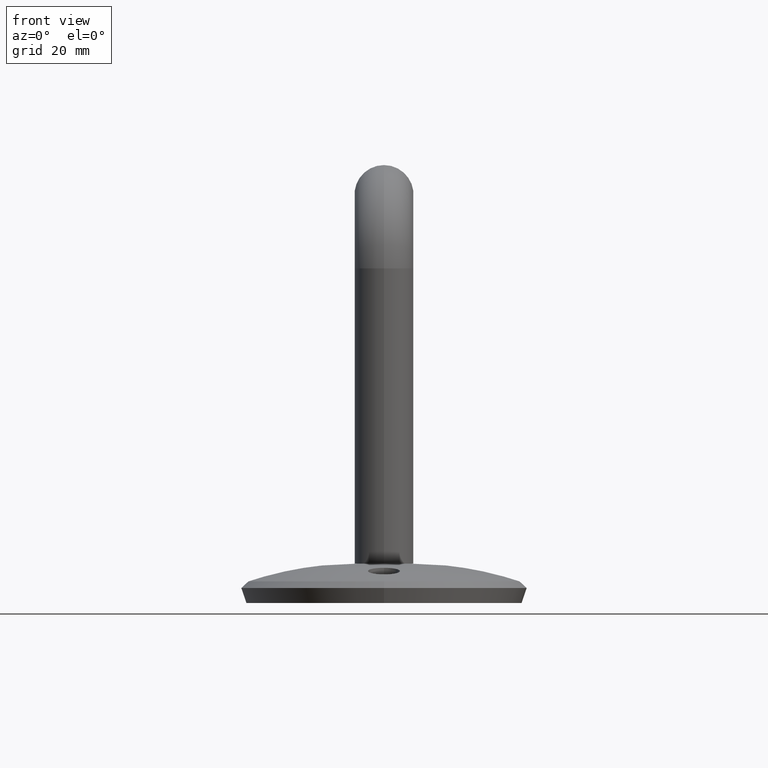
[diagram: clean part render]
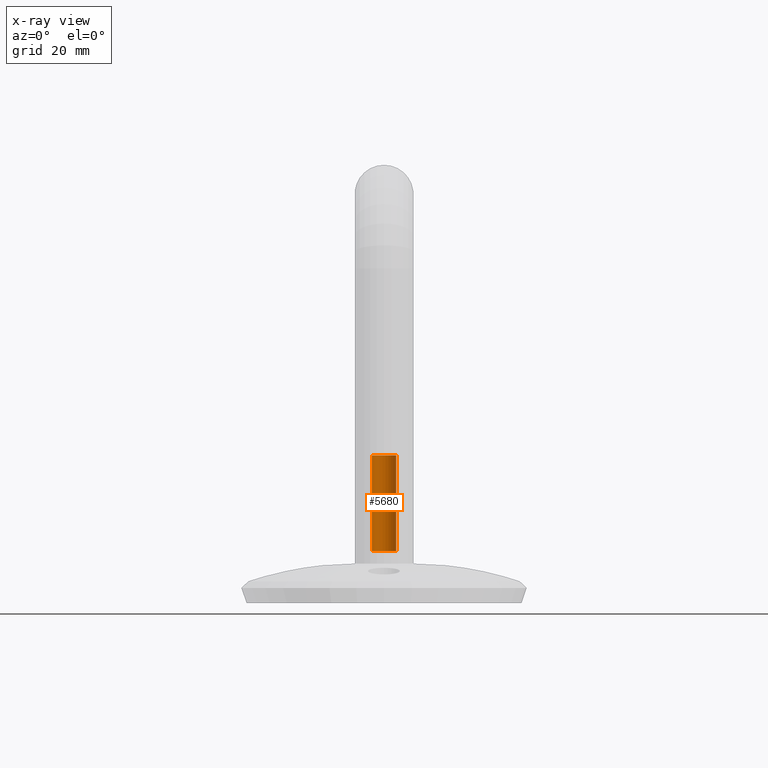
[diagram: x-ray — body ghosted, one internal face saturated and labeled with its STEP entity id]
A machine part, front view, then the same camera in x-ray: the body is ghosted and one INTERNAL B-rep face — a face not visible from any outside direction — is saturated and labeled: STEP entity #5680.
In plain terms, the highlighted cylindrical surface (edge-blend (fillet) strip) has radius 2.5 mm, axis along (-0, -0, -1).
Its self-contained STEP definition (entity closure, byte-faithful):
#104 = VECTOR ( 'NONE', #12901, 1000.000000000000000 ) ;
#1068 = AXIS2_PLACEMENT_3D ( 'NONE', #9670, #9811, #7479 ) ;
#1955 = DIRECTION ( 'NONE',  ( -1.000000000000000000, 0.000000000000000000, 0.000000000000000000 ) ) ;
#2483 = ORIENTED_EDGE ( 'NONE', *, *, #8267, .F. ) ;
#2486 = CIRCLE ( 'NONE', #1068, 2.499999999999994671 ) ;
#3505 = VERTEX_POINT ( 'NONE', #9841 ) ;
#4173 = AXIS2_PLACEMENT_3D ( 'NONE', #7586, #10747, #4184 ) ;
#4184 = DIRECTION ( 'NONE',  ( -1.000000000000000000, 0.000000000000000000, 0.000000000000000000 ) ) ;
#4874 = CARTESIAN_POINT ( 'NONE',  ( 2.499999999999996003, 4.592425496802572000E-16, 2.500000000000002665 ) ) ;
#5346 = CIRCLE ( 'NONE', #9628, 2.499999999999996003 ) ;
#5501 = FACE_OUTER_BOUND ( 'NONE', #7589, .T. ) ;
#5589 = EDGE_CURVE ( 'NONE', #3505, #13819, #12763, .T. ) ;
#5593 = ORIENTED_EDGE ( 'NONE', *, *, #7830, .F. ) ;
#5680 = ADVANCED_FACE ( 'NONE', ( #5501 ), #7926, .F. ) ;
#6073 = EDGE_CURVE ( 'NONE', #6908, #13819, #5346, .T. ) ;
#6141 = VECTOR ( 'NONE', #8280, 1000.000000000000000 ) ;
#6219 = ORIENTED_EDGE ( 'NONE', *, *, #6073, .F. ) ;
#6908 = VERTEX_POINT ( 'NONE', #4874 ) ;
#7479 = DIRECTION ( 'NONE',  ( -1.000000000000000000, 0.000000000000000000, 0.000000000000000000 ) ) ;
#7492 = CARTESIAN_POINT ( 'NONE',  ( -2.499999999999996003, 0.000000000000000000, 0.000000000000000000 ) ) ;
#7586 = CARTESIAN_POINT ( 'NONE',  ( 0.000000000000000000, 0.000000000000000000, 0.000000000000000000 ) ) ;
#7589 = EDGE_LOOP ( 'NONE', ( #2483, #5593, #13576, #6219 ) ) ;
#7830 = EDGE_CURVE ( 'NONE', #3505, #13289, #2486, .T. ) ;
#7926 = CYLINDRICAL_SURFACE ( 'NONE', #4173, 2.499999999999996003 ) ;
#8236 = CARTESIAN_POINT ( 'NONE',  ( 2.499999999999996003, 3.061616997868378211E-16, 0.000000000000000000 ) ) ;
#8267 = EDGE_CURVE ( 'NONE', #13289, #6908, #13409, .T. ) ;
#8280 = DIRECTION ( 'NONE',  ( -0.000000000000000000, -0.000000000000000000, -1.000000000000000000 ) ) ;
#9628 = AXIS2_PLACEMENT_3D ( 'NONE', #13121, #10823, #1955 ) ;
#9670 = CARTESIAN_POINT ( 'NONE',  ( 0.000000000000000000, 0.000000000000000000, 22.00000000000000000 ) ) ;
#9811 = DIRECTION ( 'NONE',  ( -0.000000000000000000, -0.000000000000000000, -1.000000000000000000 ) ) ;
#9841 = CARTESIAN_POINT ( 'NONE',  ( -2.499999999999994671, 0.000000000000000000, 22.00000000000000000 ) ) ;
#10300 = CARTESIAN_POINT ( 'NONE',  ( -2.499999999999996003, 0.000000000000000000, 2.500000000000002665 ) ) ;
#10747 = DIRECTION ( 'NONE',  ( -0.000000000000000000, -0.000000000000000000, -1.000000000000000000 ) ) ;
#10823 = DIRECTION ( 'NONE',  ( 0.000000000000000000, 0.000000000000000000, 1.000000000000000000 ) ) ;
#12763 = LINE ( 'NONE', #7492, #104 ) ;
#12901 = DIRECTION ( 'NONE',  ( -0.000000000000000000, -0.000000000000000000, -1.000000000000000000 ) ) ;
#13121 = CARTESIAN_POINT ( 'NONE',  ( 0.000000000000000000, 0.000000000000000000, 2.500000000000002665 ) ) ;
#13289 = VERTEX_POINT ( 'NONE', #13395 ) ;
#13395 = CARTESIAN_POINT ( 'NONE',  ( 2.499999999999994671, 3.061616997868377718E-16, 22.00000000000000000 ) ) ;
#13409 = LINE ( 'NONE', #8236, #6141 ) ;
#13576 = ORIENTED_EDGE ( 'NONE', *, *, #5589, .T. ) ;
#13819 = VERTEX_POINT ( 'NONE', #10300 ) ;